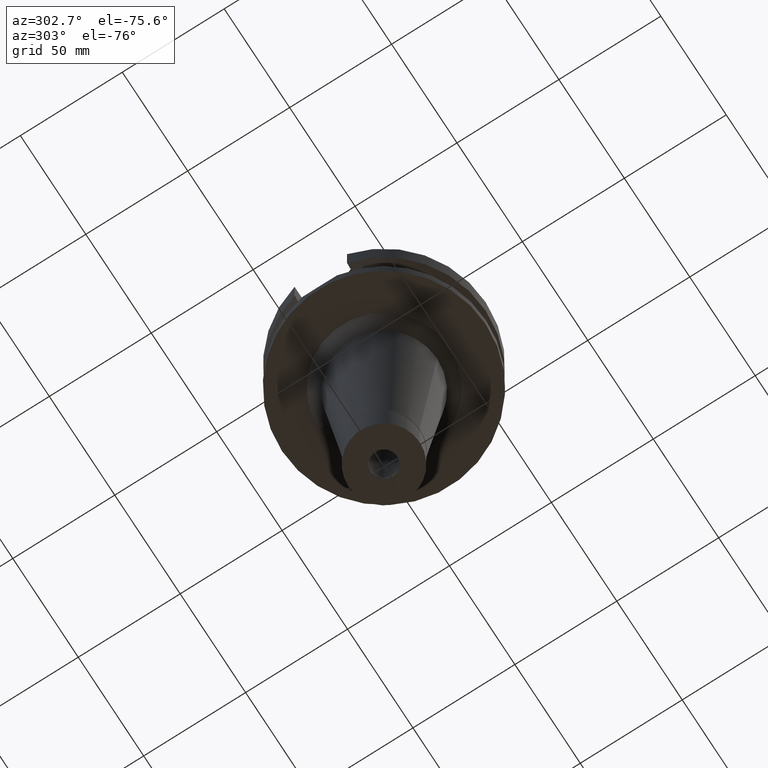
[diagram: clean part render]
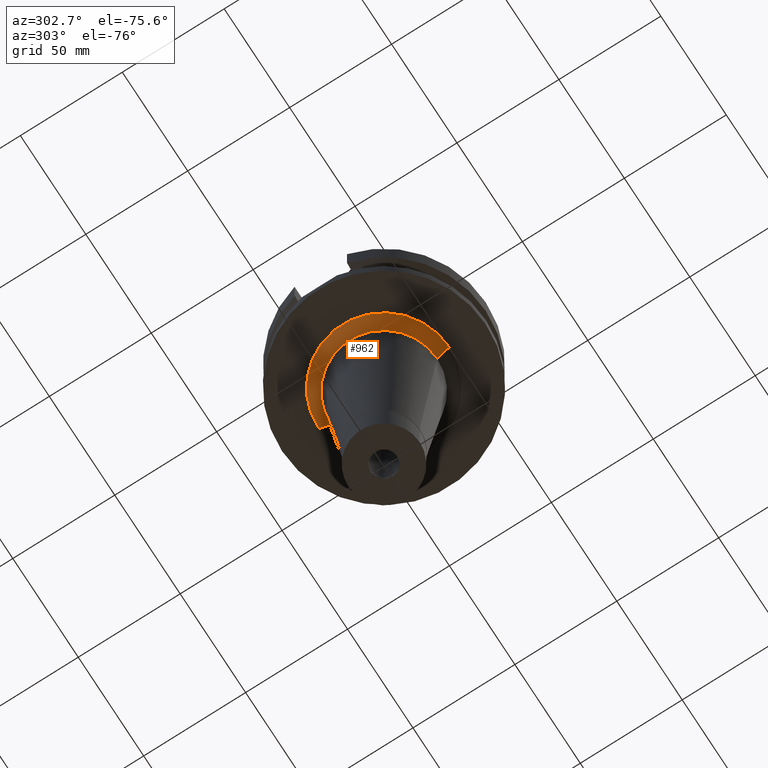
[diagram: same view with one face highlighted and labeled with its STEP entity id]
A machine part, auxiliary view. The second image highlights one B-rep face of the part: STEP entity #962.
In plain terms, the highlighted conical surface has half-angle 45 deg.
Its self-contained STEP definition (entity closure, byte-faithful):
#11 = ORIENTED_EDGE ( 'NONE', *, *, #747, .F. ) ;
#21 = EDGE_CURVE ( 'NONE', #2393, #679, #1169, .T. ) ;
#185 = DIRECTION ( 'NONE',  ( 0.0000000000000000000, 0.7071067811864976127, -0.7071067811865975328 ) ) ;
#381 = CONICAL_SURFACE ( 'NONE', #2184, 29.04764242647999950, 0.7853981633972997312 ) ;
#540 = ORIENTED_EDGE ( 'NONE', *, *, #2285, .T. ) ;
#541 = CARTESIAN_POINT ( 'NONE',  ( 0.0000000000000000000, -32.04764242647999595, -38.00000000000000000 ) ) ;
#642 = EDGE_LOOP ( 'NONE', ( #11, #1589, #540, #1255 ) ) ;
#679 = VERTEX_POINT ( 'NONE', #942 ) ;
#747 = EDGE_CURVE ( 'NONE', #679, #3117, #2894, .T. ) ;
#812 = CARTESIAN_POINT ( 'NONE',  ( 0.0000000000000000000, 32.04764242647999595, -38.00000000000000000 ) ) ;
#922 = DIRECTION ( 'NONE',  ( 0.0000000000000000000, -0.7071067811864976127, -0.7071067811865975328 ) ) ;
#942 = CARTESIAN_POINT ( 'NONE',  ( 0.0000000000000000000, -26.04764242647999950, -44.00000000000000000 ) ) ;
#962 = ADVANCED_FACE ( 'NONE', ( #1839 ), #381, .T. ) ;
#1029 = DIRECTION ( 'NONE',  ( 0.0000000000000000000, 0.0000000000000000000, -1.000000000000000000 ) ) ;
#1078 = CARTESIAN_POINT ( 'NONE',  ( 0.0000000000000000000, 26.04764242647999950, -44.00000000000000000 ) ) ;
#1102 = DIRECTION ( 'NONE',  ( 0.0000000000000000000, -1.000000000000000000, 0.0000000000000000000 ) ) ;
#1169 = LINE ( 'NONE', #2641, #2131 ) ;
#1225 = VECTOR ( 'NONE', #922, 1000.000000000000114 ) ;
#1255 = ORIENTED_EDGE ( 'NONE', *, *, #1265, .T. ) ;
#1265 = EDGE_CURVE ( 'NONE', #2897, #3117, #1694, .T. ) ;
#1289 = CIRCLE ( 'NONE', #3092, 32.04764242647999595 ) ;
#1333 = DIRECTION ( 'NONE',  ( 0.0000000000000000000, 0.0000000000000000000, 1.000000000000000000 ) ) ;
#1564 = DIRECTION ( 'NONE',  ( 0.0000000000000000000, 1.000000000000000000, 0.0000000000000000000 ) ) ;
#1568 = DIRECTION ( 'NONE',  ( 0.0000000000000000000, 0.0000000000000000000, -1.000000000000000000 ) ) ;
#1584 = CARTESIAN_POINT ( 'NONE',  ( 0.0000000000000000000, 0.0000000000000000000, -38.00000000000000000 ) ) ;
#1589 = ORIENTED_EDGE ( 'NONE', *, *, #21, .F. ) ;
#1694 = LINE ( 'NONE', #1892, #1225 ) ;
#1723 = DIRECTION ( 'NONE',  ( 0.0000000000000000000, -1.000000000000000000, 0.0000000000000000000 ) ) ;
#1839 = FACE_OUTER_BOUND ( 'NONE', #642, .T. ) ;
#1892 = CARTESIAN_POINT ( 'NONE',  ( 0.0000000000000000000, 32.04764242647999595, -38.00000000000000000 ) ) ;
#1984 = CARTESIAN_POINT ( 'NONE',  ( 0.0000000000000000000, 0.0000000000000000000, -44.00000000000000000 ) ) ;
#2131 = VECTOR ( 'NONE', #185, 1000.000000000000114 ) ;
#2184 = AXIS2_PLACEMENT_3D ( 'NONE', #2797, #1333, #1564 ) ;
#2285 = EDGE_CURVE ( 'NONE', #2393, #2897, #1289, .T. ) ;
#2393 = VERTEX_POINT ( 'NONE', #541 ) ;
#2641 = CARTESIAN_POINT ( 'NONE',  ( 0.0000000000000000000, -32.04764242647999595, -38.00000000000000000 ) ) ;
#2797 = CARTESIAN_POINT ( 'NONE',  ( 0.0000000000000000000, 0.0000000000000000000, -41.00000000000000000 ) ) ;
#2894 = CIRCLE ( 'NONE', #2946, 26.04764242647999950 ) ;
#2897 = VERTEX_POINT ( 'NONE', #812 ) ;
#2946 = AXIS2_PLACEMENT_3D ( 'NONE', #1984, #1029, #1723 ) ;
#3092 = AXIS2_PLACEMENT_3D ( 'NONE', #1584, #1568, #1102 ) ;
#3117 = VERTEX_POINT ( 'NONE', #1078 ) ;